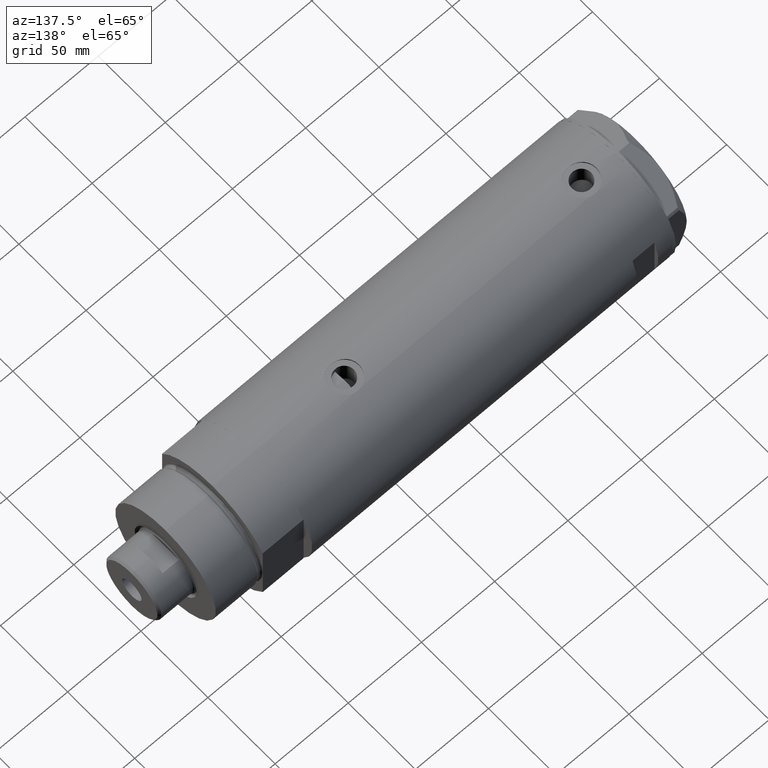
[diagram: clean part render]
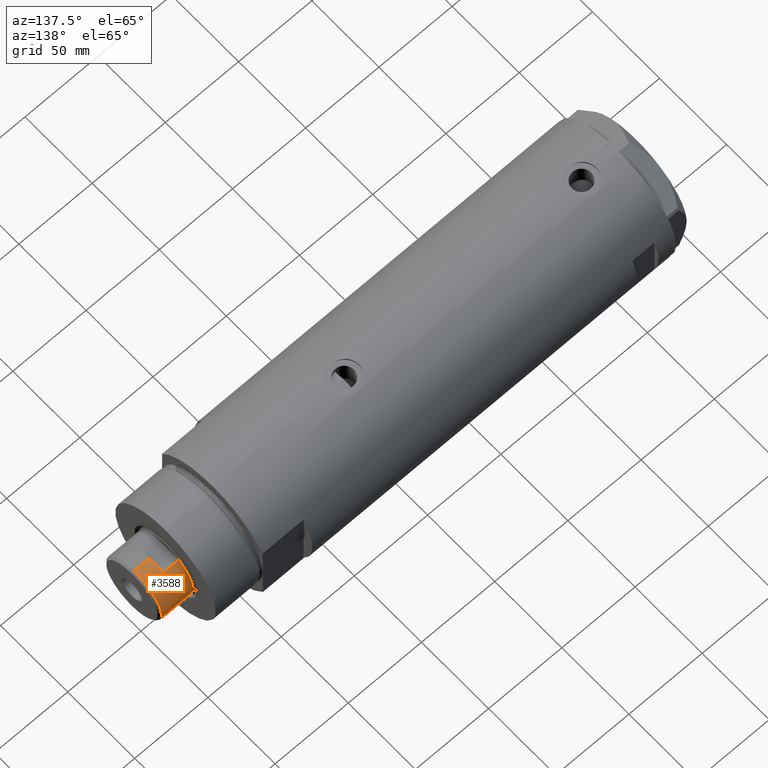
[diagram: same view with one face highlighted and labeled with its STEP entity id]
A machine part, auxiliary view. The second image highlights one B-rep face of the part: STEP entity #3588.
In plain terms, the highlighted cylindrical surface (partial cylindrical patch) has radius 20.5 mm, axis along (-1, -0, 0).
Its self-contained STEP definition (entity closure, byte-faithful):
#50 = VECTOR ( 'NONE', #2325, 1000.000000000000000 ) ;
#70 = VERTEX_POINT ( 'NONE', #2008 ) ;
#95 = EDGE_CURVE ( 'NONE', #1733, #4492, #1967, .T. ) ;
#173 = VERTEX_POINT ( 'NONE', #1705 ) ;
#183 = EDGE_CURVE ( 'NONE', #3650, #2579, #414, .T. ) ;
#186 = ORIENTED_EDGE ( 'NONE', *, *, #560, .T. ) ;
#262 = DIRECTION ( 'NONE',  ( 0.000000000000000000, 0.000000000000000000, 1.000000000000000000 ) ) ;
#330 = LINE ( 'NONE', #1728, #2426 ) ;
#414 = CIRCLE ( 'NONE', #3586, 20.50000000000012434 ) ;
#419 = VECTOR ( 'NONE', #2430, 1000.000000000000000 ) ;
#449 = AXIS2_PLACEMENT_3D ( 'NONE', #891, #262, #2675 ) ;
#501 = CARTESIAN_POINT ( 'NONE',  ( 17.97852886083842705, 9.849999999999997868, 291.3000000000000114 ) ) ;
#511 = LINE ( 'NONE', #4031, #3441 ) ;
#545 = CARTESIAN_POINT ( 'NONE',  ( 0.000000000000000000, 0.000000000000000000, 291.3000000000000114 ) ) ;
#560 = EDGE_CURVE ( 'NONE', #2476, #3650, #3491, .T. ) ;
#584 = CIRCLE ( 'NONE', #449, 20.50000000000000000 ) ;
#627 = DIRECTION ( 'NONE',  ( 0.000000000000000000, 0.000000000000000000, 1.000000000000000000 ) ) ;
#683 = DIRECTION ( 'NONE',  ( -0.000000000000000000, -0.000000000000000000, -1.000000000000000000 ) ) ;
#757 = ORIENTED_EDGE ( 'NONE', *, *, #3888, .T. ) ;
#872 = DIRECTION ( 'NONE',  ( 0.000000000000000000, 0.000000000000000000, -1.000000000000000000 ) ) ;
#891 = CARTESIAN_POINT ( 'NONE',  ( 0.000000000000000000, 0.000000000000000000, 291.3000000000000114 ) ) ;
#910 = EDGE_CURVE ( 'NONE', #70, #2189, #511, .T. ) ;
#971 = DIRECTION ( 'NONE',  ( 1.000000000000000000, 0.000000000000000000, 0.000000000000000000 ) ) ;
#995 = DIRECTION ( 'NONE',  ( 1.000000000000000000, 0.000000000000000000, 0.000000000000000000 ) ) ;
#1053 = CARTESIAN_POINT ( 'NONE',  ( 17.97852886083842705, 9.849999999999997868, 280.3000000000000114 ) ) ;
#1069 = CARTESIAN_POINT ( 'NONE',  ( 0.000000000000000000, 0.000000000000000000, 280.3000000000000114 ) ) ;
#1079 = EDGE_LOOP ( 'NONE', ( #4141, #3944, #757, #186, #1677, #1237, #4371, #3165 ) ) ;
#1237 = ORIENTED_EDGE ( 'NONE', *, *, #3594, .F. ) ;
#1311 = AXIS2_PLACEMENT_3D ( 'NONE', #3497, #2082, #3845 ) ;
#1548 = CIRCLE ( 'NONE', #3462, 20.50000000000000000 ) ;
#1605 = DIRECTION ( 'NONE',  ( -0.000000000000000000, -0.000000000000000000, -1.000000000000000000 ) ) ;
#1677 = ORIENTED_EDGE ( 'NONE', *, *, #183, .T. ) ;
#1705 = CARTESIAN_POINT ( 'NONE',  ( -17.97852886083842705, 9.849999999999997868, 291.3000000000000114 ) ) ;
#1728 = CARTESIAN_POINT ( 'NONE',  ( -17.97852886083842705, 9.849999999999997868, 291.3000000000000114 ) ) ;
#1733 = VERTEX_POINT ( 'NONE', #2000 ) ;
#1967 = LINE ( 'NONE', #3038, #50 ) ;
#2000 = CARTESIAN_POINT ( 'NONE',  ( -20.50000000000000355, 0.000000000000000000, 301.8999999999999773 ) ) ;
#2008 = CARTESIAN_POINT ( 'NONE',  ( 20.50000000000000355, 2.510525938252074481E-15, 301.8999999999999773 ) ) ;
#2082 = DIRECTION ( 'NONE',  ( -0.000000000000000000, -0.000000000000000000, -1.000000000000000000 ) ) ;
#2108 = CYLINDRICAL_SURFACE ( 'NONE', #1311, 20.50000000000000355 ) ;
#2165 = CARTESIAN_POINT ( 'NONE',  ( 20.50000000000000000, 2.510525938252074481E-15, 291.3000000000000114 ) ) ;
#2189 = VERTEX_POINT ( 'NONE', #2165 ) ;
#2325 = DIRECTION ( 'NONE',  ( -0.000000000000000000, -0.000000000000000000, -1.000000000000000000 ) ) ;
#2351 = CIRCLE ( 'NONE', #4332, 20.50000000000000355 ) ;
#2364 = CARTESIAN_POINT ( 'NONE',  ( -20.50000000000000000, 0.000000000000000000, 291.3000000000000114 ) ) ;
#2404 = CARTESIAN_POINT ( 'NONE',  ( 17.97852886083842705, 9.849999999999997868, 291.3000000000000114 ) ) ;
#2409 = DIRECTION ( 'NONE',  ( 0.000000000000000000, 0.000000000000000000, 1.000000000000000000 ) ) ;
#2426 = VECTOR ( 'NONE', #683, 1000.000000000000000 ) ;
#2430 = DIRECTION ( 'NONE',  ( -0.000000000000000000, -0.000000000000000000, -1.000000000000000000 ) ) ;
#2476 = VERTEX_POINT ( 'NONE', #501 ) ;
#2579 = VERTEX_POINT ( 'NONE', #3697 ) ;
#2675 = DIRECTION ( 'NONE',  ( 1.000000000000000000, 0.000000000000000000, 0.000000000000000000 ) ) ;
#2850 = EDGE_CURVE ( 'NONE', #1733, #70, #2351, .T. ) ;
#3038 = CARTESIAN_POINT ( 'NONE',  ( -20.50000000000000355, 0.000000000000000000, 291.3000000000000114 ) ) ;
#3165 = ORIENTED_EDGE ( 'NONE', *, *, #95, .F. ) ;
#3441 = VECTOR ( 'NONE', #1605, 1000.000000000000000 ) ;
#3462 = AXIS2_PLACEMENT_3D ( 'NONE', #545, #627, #971 ) ;
#3491 = LINE ( 'NONE', #2404, #419 ) ;
#3497 = CARTESIAN_POINT ( 'NONE',  ( 0.000000000000000000, 0.000000000000000000, 291.3000000000000114 ) ) ;
#3586 = AXIS2_PLACEMENT_3D ( 'NONE', #1069, #2409, #995 ) ;
#3588 = ADVANCED_FACE ( 'NONE', ( #4522 ), #2108, .T. ) ;
#3594 = EDGE_CURVE ( 'NONE', #173, #2579, #330, .T. ) ;
#3650 = VERTEX_POINT ( 'NONE', #1053 ) ;
#3687 = DIRECTION ( 'NONE',  ( 1.000000000000000000, 0.000000000000000000, 0.000000000000000000 ) ) ;
#3697 = CARTESIAN_POINT ( 'NONE',  ( -17.97852886083843060, 9.850000000000246558, 280.3000000000000114 ) ) ;
#3845 = DIRECTION ( 'NONE',  ( -1.000000000000000000, 0.000000000000000000, 0.000000000000000000 ) ) ;
#3864 = EDGE_CURVE ( 'NONE', #173, #4492, #584, .T. ) ;
#3888 = EDGE_CURVE ( 'NONE', #2189, #2476, #1548, .T. ) ;
#3944 = ORIENTED_EDGE ( 'NONE', *, *, #910, .T. ) ;
#4027 = CARTESIAN_POINT ( 'NONE',  ( 0.000000000000000000, 0.000000000000000000, 301.8999999999999773 ) ) ;
#4031 = CARTESIAN_POINT ( 'NONE',  ( 20.50000000000000355, 2.510525938252074481E-15, 291.3000000000000114 ) ) ;
#4141 = ORIENTED_EDGE ( 'NONE', *, *, #2850, .T. ) ;
#4332 = AXIS2_PLACEMENT_3D ( 'NONE', #4027, #872, #3687 ) ;
#4371 = ORIENTED_EDGE ( 'NONE', *, *, #3864, .T. ) ;
#4492 = VERTEX_POINT ( 'NONE', #2364 ) ;
#4522 = FACE_OUTER_BOUND ( 'NONE', #1079, .T. ) ;